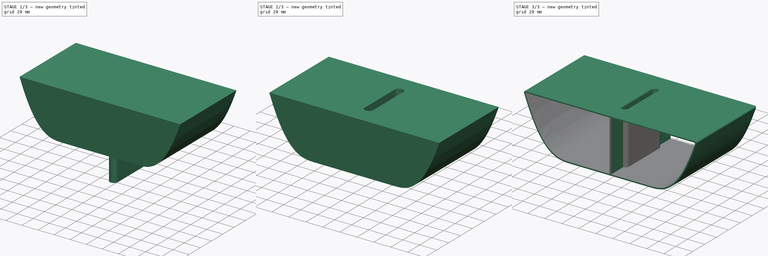
[diagram: build sequence overview — one tinted view per stage of 3, left to right]
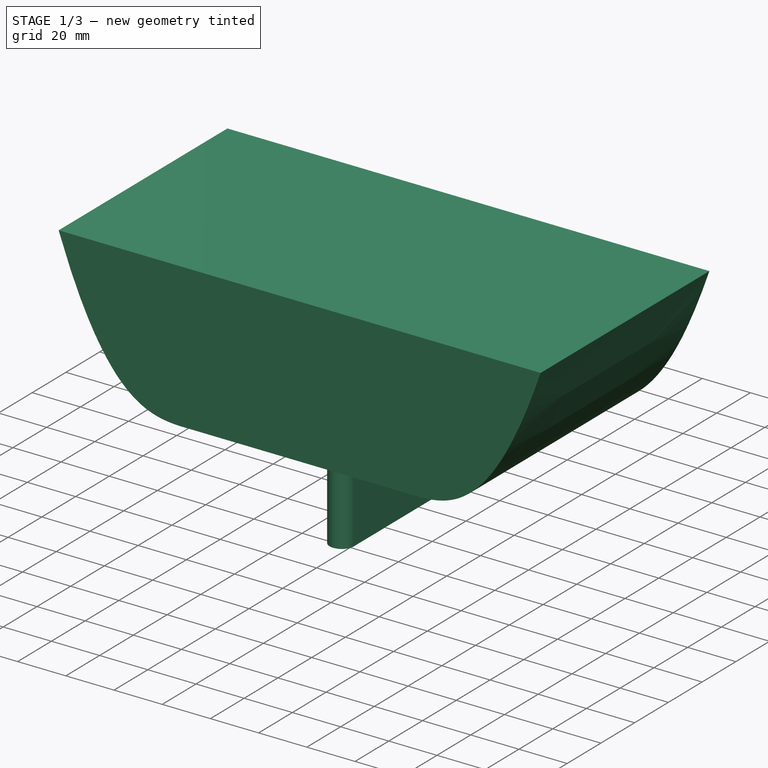
[diagram: stage 1 of 3 — iso view after this stage's code; geometry added in this stage tinted green]
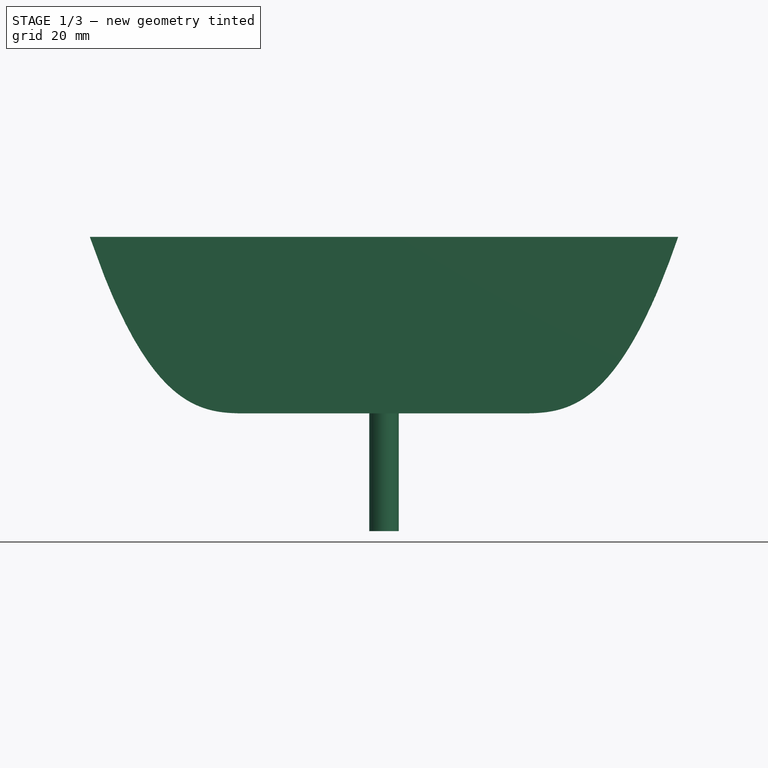
[diagram: stage 1 of 3 — front view after this stage's code; geometry added in this stage tinted green]
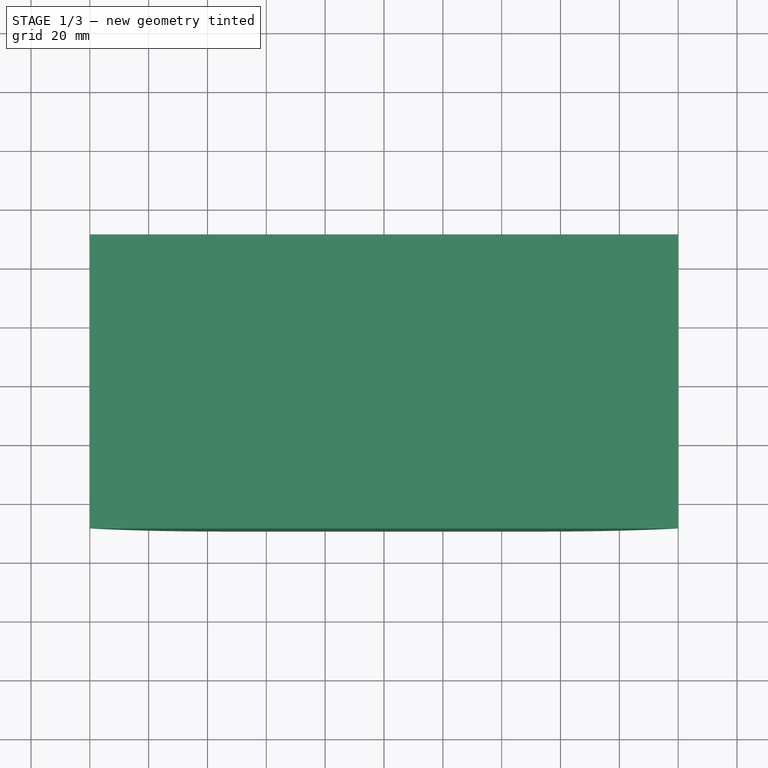
[diagram: stage 1 of 3 — top view after this stage's code; geometry added in this stage tinted green]
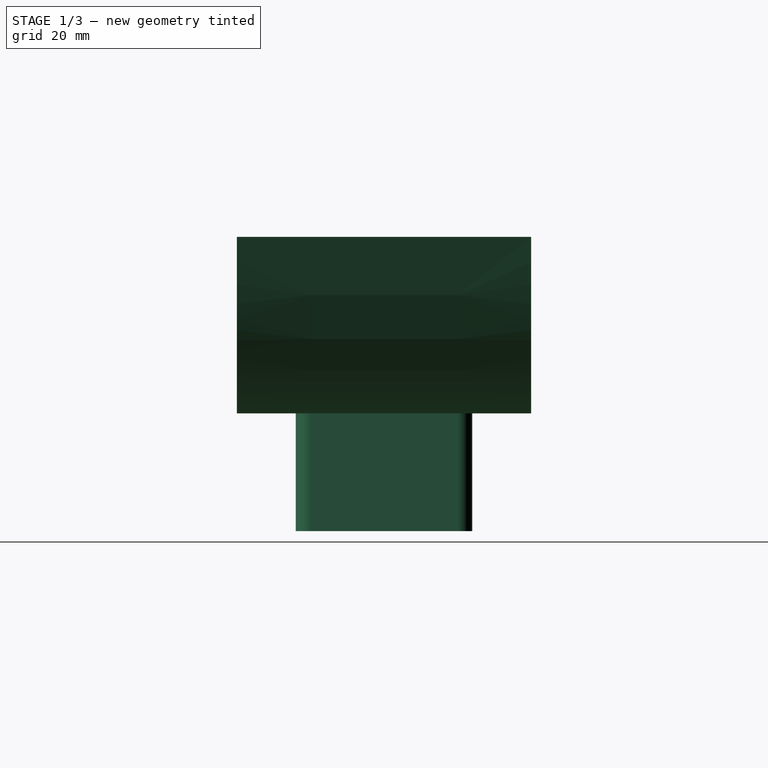
[diagram: stage 1 of 3 — right view after this stage's code; geometry added in this stage tinted green]
FCSTD DOCUMENT  (FreeCAD 0.18R16131 (Git))
Label: Mid_test
License: All rights reserved
LicenseURL: http://en.wikipedia.org/wiki/All_rights_reserved
objects: Sketcher::SketchObject×3, PartDesign::Pad×3, PartDesign::Body×2, PartDesign::Boolean×1, PartDesign::Thickness×1
note: 13 computed .brp shape members not serialized (recipe doc carries the construction recipe); baked Part::Feature solids carry a one-line shape summary decoded from their .brp

FEATURE [Sketcher::SketchObject] Sketch002
  MapMode = 5
  Support = -> [XY_Plane001]
  sketch-geometry (6):
    g0: ArcOfCircle CenterX=0 CenterY=25 CenterZ=0 NormalX=0 NormalY=0 NormalZ=1 AngleXU=0 Radius=5 StartAngle=0 EndAngle=3.14159
    g1: ArcOfCircle CenterX=-1.75e-14 CenterY=-25 CenterZ=0 NormalX=0 NormalY=0 NormalZ=1 AngleXU=0 Radius=5 StartAngle=3.14159 EndAngle=6.28319
    g2: LineSegment StartX=-5 StartY=25 StartZ=0 EndX=-5 EndY=-25 EndZ=0
    g3: LineSegment StartX=5 StartY=25 StartZ=0 EndX=5 EndY=-25 EndZ=0
    g4: LineSegment [constr] StartX=-5 StartY=25 StartZ=0 EndX=0 EndY=0 EndZ=0
    g5: LineSegment [constr] StartX=-5 StartY=-25 StartZ=0 EndX=0 EndY=0 EndZ=0
  constraints (14):
    c: Tangent(g0,g3) = 1.5708
    c: Tangent(g0,g2) = -1.5708
    c: Tangent(g2,g1) = -1.5708
    c: Tangent(g3,g1) = 1.5708
    c: Vertical(g2)
    c: Equal(g0,g1)
    c: PointOnObject(g0,g-2)
    c: DistanceX(g0,g0) = 10
    c: DistanceY(g1,g0) = 50
    c: Coincident(g4,g0)
    c: Coincident(g4,g-1)
    c: Coincident(g5,g1)
    c: Coincident(g5,g-1)
    c: Equal(g4,g5)
FEATURE [PartDesign::Pad] Pad001
  Length = 100
  Length2 = 100
  Profile = -> Sketch002
  Reversed = true
  Type = 0
FEATURE [PartDesign::Body] Body001  label="Keel Slot"
  Group = -> [Sketch002,Pad001]
  Origin = -> Origin001
  Tip = -> Pad001
FEATURE [Sketcher::SketchObject] Sketch003
  MapMode = 5
  Placement = pos=(0,0,0) rot=(1,0,0;1.5708rad)
  Support = -> [XZ_Plane]
  sketch-geometry (20):
    g0: LineSegment [constr] StartX=-100 StartY=0 StartZ=0 EndX=-79.3185 EndY=-60 EndZ=0
    g1: LineSegment [constr] StartX=-79.3185 StartY=-60 StartZ=0 EndX=-44.3577 EndY=-60 EndZ=0
    g2: LineSegment [constr] StartX=-44.3577 StartY=-60 StartZ=0 EndX=0 EndY=-60 EndZ=0
    g3: LineSegment [constr] StartX=0 StartY=-60 StartZ=0 EndX=44.3577 EndY=-60 EndZ=0
    g4: LineSegment [constr] StartX=44.3577 StartY=-60 StartZ=0 EndX=79.3185 EndY=-60 EndZ=0
    g5: LineSegment [constr] StartX=79.3185 StartY=-60 StartZ=0 EndX=100 EndY=0 EndZ=0
    g6: LineSegment StartX=-100 StartY=0 StartZ=0 EndX=100 EndY=0 EndZ=0
    g7-g13: Circle [constr] x7 (B-spline internal-alignment scaffolding for g14; pole/knot coordinates omitted)
    g14: BSplineCurve PolesCount=7 KnotsCount=5 Degree=3 IsPeriodic=0
    g15-g19: GeomPoint [constr] x5 (B-spline internal-alignment scaffolding for g14; pole/knot coordinates omitted)
  constraints (35):
    c: PointOnObject(g0,g-1)
    c: Coincident(g1,g0)
    c: Horizontal(g1)
    c: Coincident(g2,g1)
    c: Horizontal(g2)
    c: Coincident(g3,g2)
    c: Horizontal(g3)
    c: Coincident(g4,g3)
    c: Horizontal(g4)
    c: Coincident(g5,g4)
    c: PointOnObject(g5,g-1)
    c: Equal(g4,g1)
    c: Equal(g2,g3)
    c: Coincident(g6,g0)
    c: Coincident(g6,g5)
    c: DistanceX(g6,g6) = 200
    c: PointOnObject(g2,g-2)
    c: Equal(g0,g5)
    c: Coincident(g14,g6)
    c: Radius(g7) = 10
    c: Equal(g7,g8)
    c: Coincident(g8,g0)
    c: Equal(g7,g9)
    c: Coincident(g9,g1)
    c: Equal(g7,g10)
    c: Coincident(g10,g2)
    c: Equal(g7,g11)
    c: Coincident(g11,g3)
    c: Equal(g7,g12)
    c: Coincident(g12,g4)
    c: Equal(g7,g13)
    c: Coincident(g14,g6)
    c: InternalAlignment(g7-g13 -> g14) x7
    c: InternalAlignment(g15-g19 -> g14) x5
    c: DistanceY(g2,g-1) = 60
FEATURE [PartDesign::Pad] Pad
  Length = 100
  Length2 = 100
  Midplane = true
  Placement = pos=(0,0,0) rot=(1,0,0;1.5708rad)
  Profile = -> Sketch003
  Type = 0
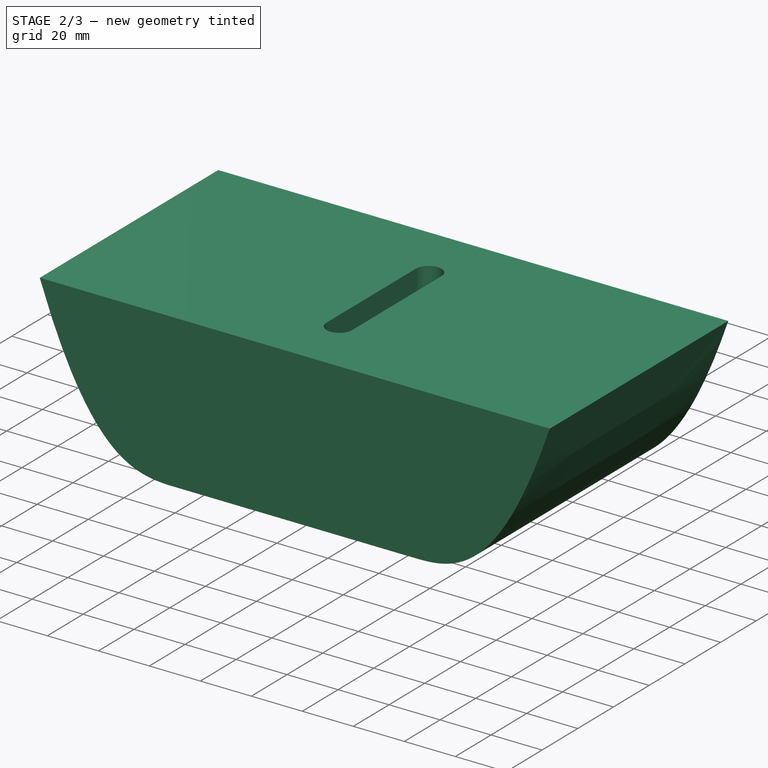
[diagram: stage 2 of 3 — iso view after this stage's code; geometry added in this stage tinted green]
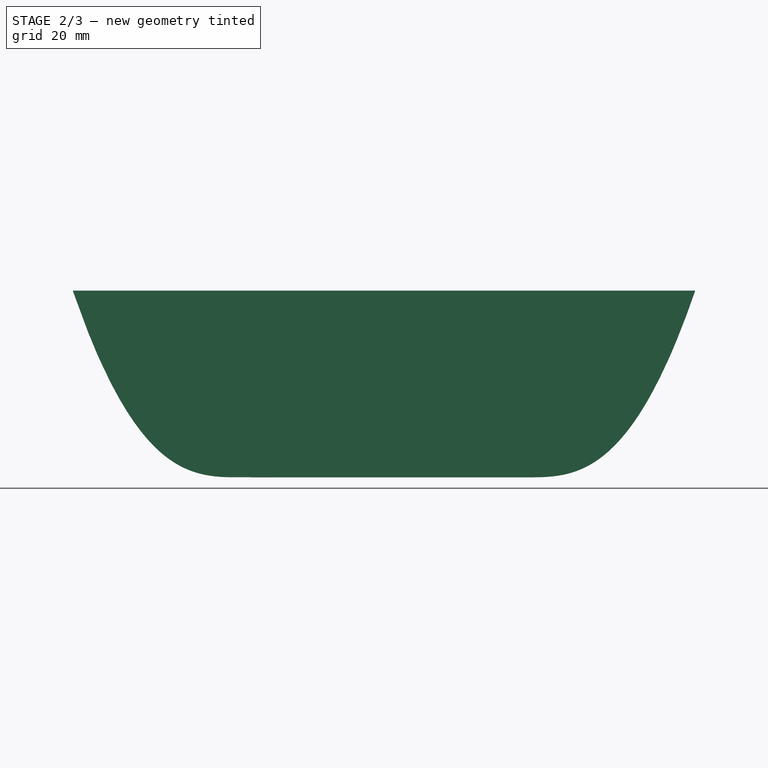
[diagram: stage 2 of 3 — front view after this stage's code; geometry added in this stage tinted green]
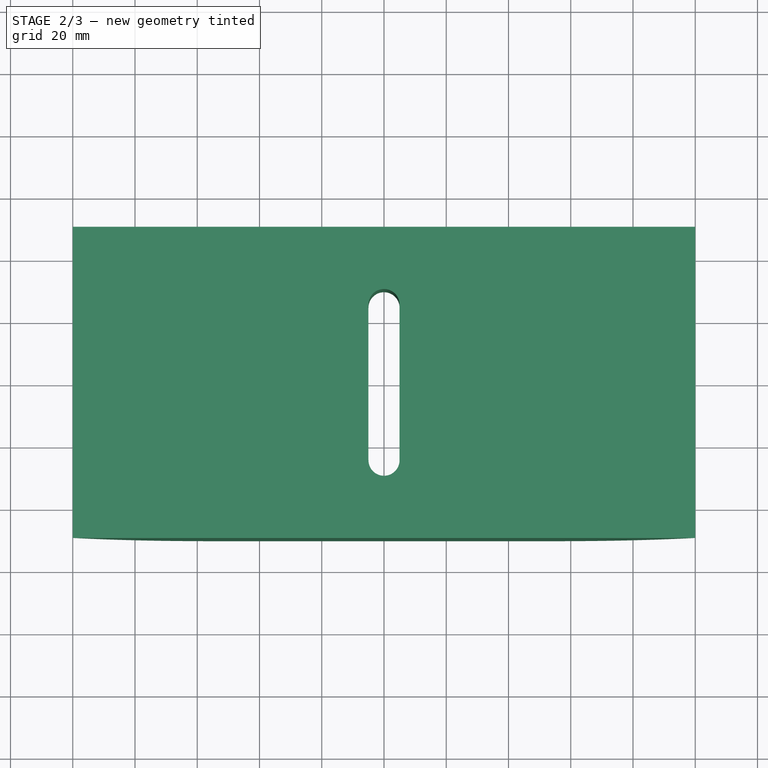
[diagram: stage 2 of 3 — top view after this stage's code; geometry added in this stage tinted green]
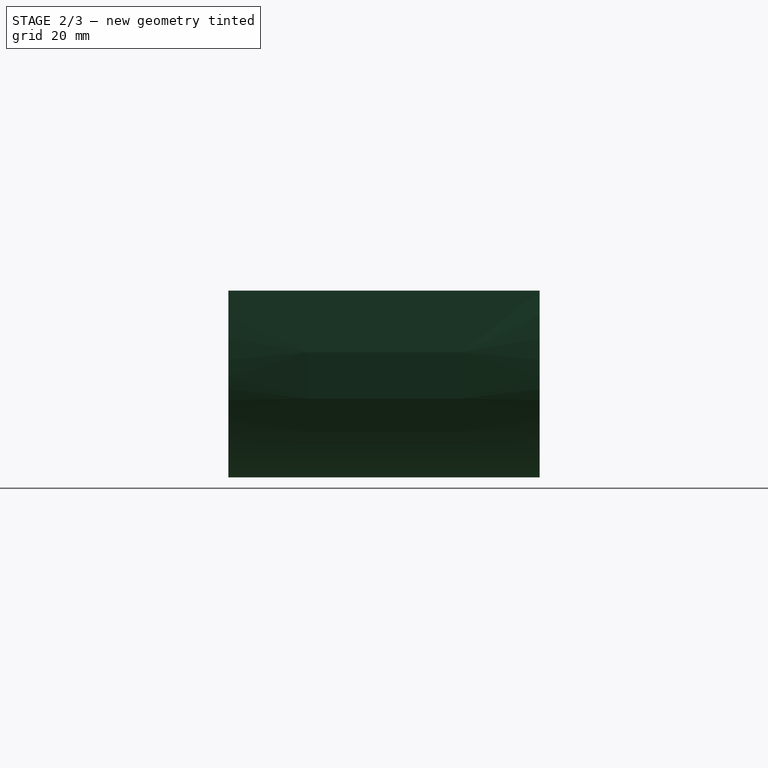
[diagram: stage 2 of 3 — right view after this stage's code; geometry added in this stage tinted green]
FEATURE [PartDesign::Boolean] Boolean
  BaseFeature = -> Pad
  Group = -> [Body001]
  Type = 1
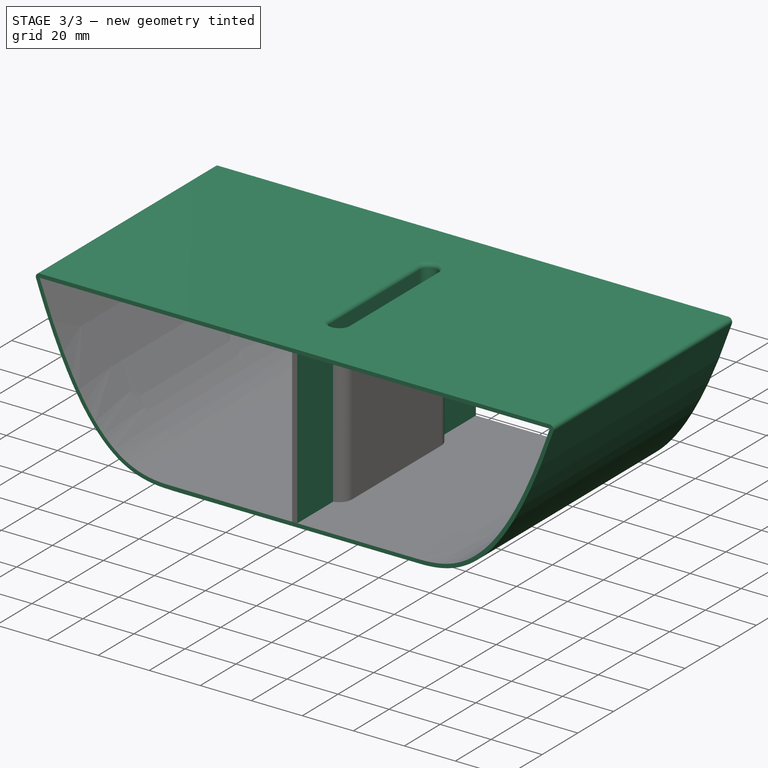
[diagram: stage 3 of 3 — iso view after this stage's code; geometry added in this stage tinted green]
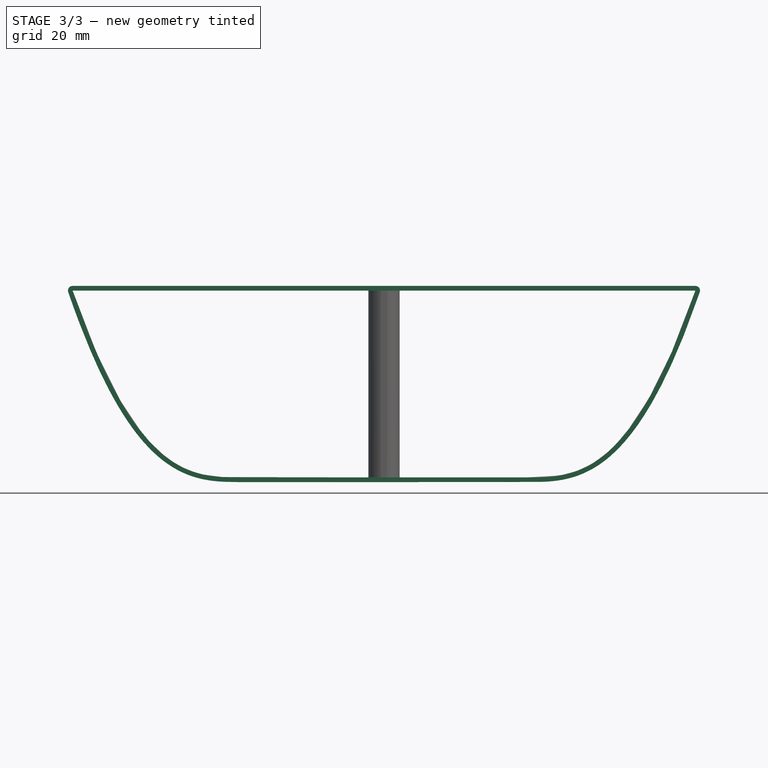
[diagram: stage 3 of 3 — front view after this stage's code; geometry added in this stage tinted green]
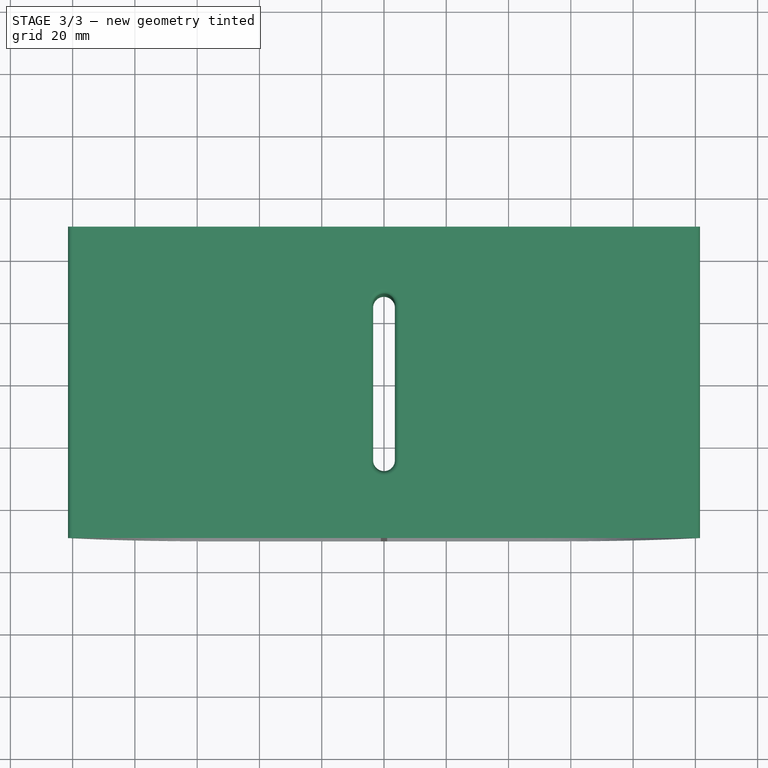
[diagram: stage 3 of 3 — top view after this stage's code; geometry added in this stage tinted green]
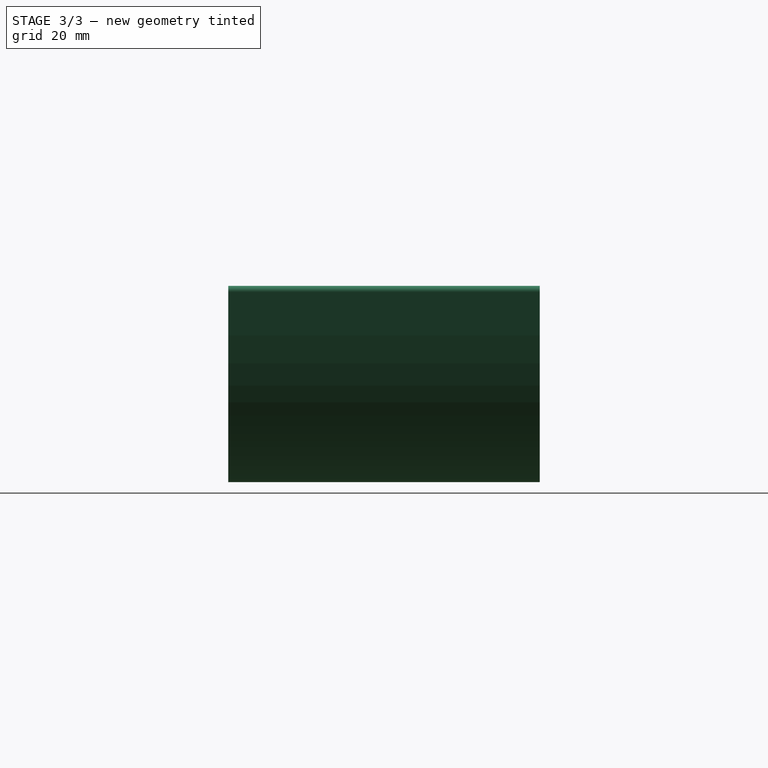
[diagram: stage 3 of 3 — right view after this stage's code; geometry added in this stage tinted green]
FEATURE [PartDesign::Thickness] Thickness
  Base = -> Boolean [Face4,Face3]
  BaseFeature = -> Boolean
  Join = 0
  Mode = 0
  Value = 1.5
FEATURE [Sketcher::SketchObject] Sketch
  MapMode = 5
  Placement = pos=(0,0,0) rot=(1,0,0;3.14159rad)
  Support = -> [Thickness]
  sketch-geometry (12):
    g0: LineSegment StartX=-1 StartY=50 StartZ=0 EndX=1 EndY=50 EndZ=0
    g1: LineSegment StartX=1 StartY=50 StartZ=0 EndX=1 EndY=30 EndZ=0
    g2: LineSegment StartX=1 StartY=30 StartZ=0 EndX=-1 EndY=30 EndZ=0
    g3: LineSegment StartX=-1 StartY=30 StartZ=0 EndX=-1 EndY=50 EndZ=0
    g4: LineSegment StartX=-1 StartY=-50 StartZ=0 EndX=1 EndY=-50 EndZ=0
    g5: LineSegment StartX=1 StartY=-50 StartZ=0 EndX=1 EndY=-30 EndZ=0
    g6: LineSegment StartX=1 StartY=-30 StartZ=0 EndX=-1 EndY=-30 EndZ=0
    g7: LineSegment StartX=-1 StartY=-30 StartZ=0 EndX=-1 EndY=-50 EndZ=0
    g8: LineSegment [constr] StartX=-1 StartY=30 StartZ=0 EndX=0 EndY=0 EndZ=0
    g9: LineSegment [constr] StartX=1 StartY=30 StartZ=0 EndX=0 EndY=0 EndZ=0
    g10: LineSegment [constr] StartX=0 StartY=0 StartZ=0 EndX=-1 EndY=-30 EndZ=0
    g11: LineSegment [constr] StartX=0 StartY=0 StartZ=0 EndX=1 EndY=-30 EndZ=0
  constraints (32):
    c: Coincident(g0,g1)
    c: Coincident(g1,g2)
    c: Coincident(g2,g3)
    c: Coincident(g3,g0)
    c: Horizontal(g0)
    c: Horizontal(g2)
    c: Vertical(g1)
    c: Vertical(g3)
    c: Coincident(g4,g5)
    c: Coincident(g5,g6)
    c: Coincident(g6,g7)
    c: Coincident(g7,g4)
    c: Horizontal(g4)
    c: Horizontal(g6)
    c: Vertical(g5)
    c: Vertical(g7)
    c: Equal(g6,g2)
    c: Coincident(g8,g2)
    c: Coincident(g8,g-1)
    c: Coincident(g9,g1)
    c: Coincident(g9,g-1)
    c: Coincident(g10,g-1)
    c: Coincident(g10,g6)
    c: Coincident(g11,g-1)
    c: Coincident(g11,g5)
    c: Equal(g10,g11)
    c: Equal(g11,g9)
    c: Equal(g9,g8)
    c: DistanceX(g0,g0) = 2
    c: DistanceY(g-1,g1) = 30
    c: DistanceY(g-1,g0) = 50
    c: Equal(g7,g3)
FEATURE [PartDesign::Pad] Pad002
  BaseFeature = -> Thickness
  Length = 60
  Length2 = 100
  Profile = -> Sketch
  Refine = true
  Type = 0
FEATURE [PartDesign::Body] Body  label="Hull"
  Group = -> [Sketch003,Pad,Boolean,Thickness,Sketch,Pad002]
  Origin = -> Origin
  Tip = -> Pad002
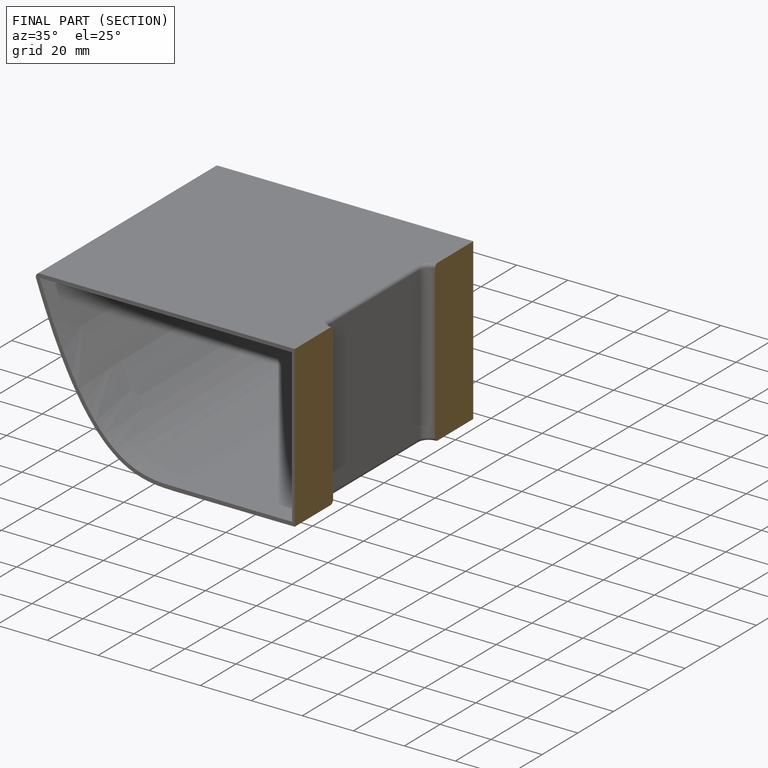
[diagram: finished part — half-section view (interior)]
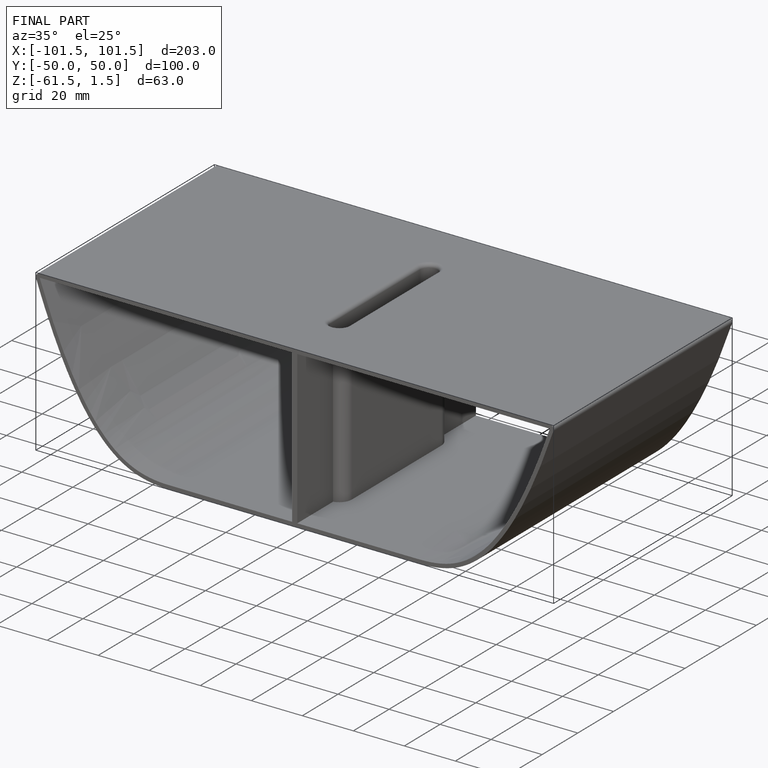
[diagram: finished part — iso view with bounding-box wireframe]
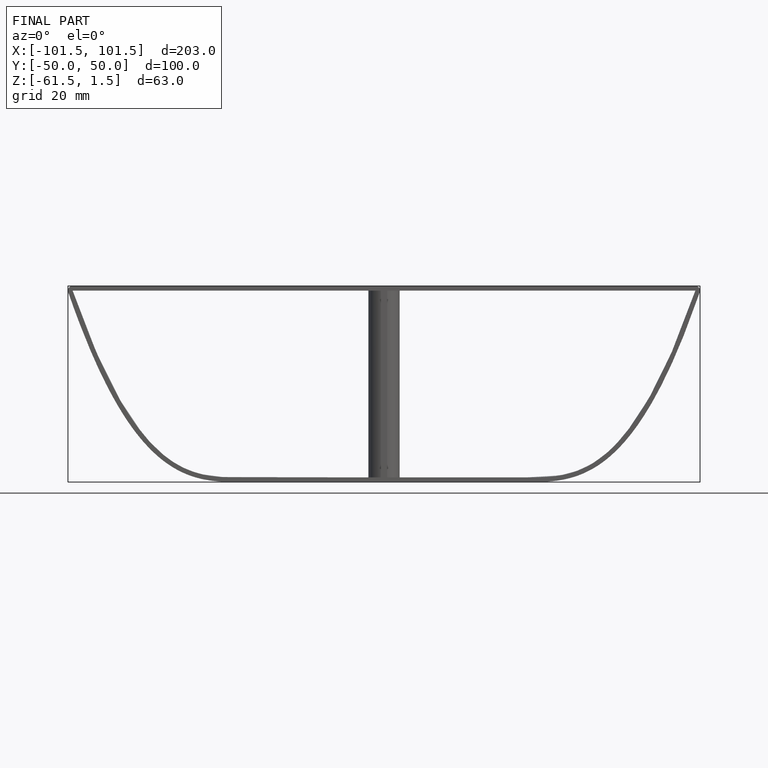
[diagram: finished part — front view with bounding-box wireframe]
